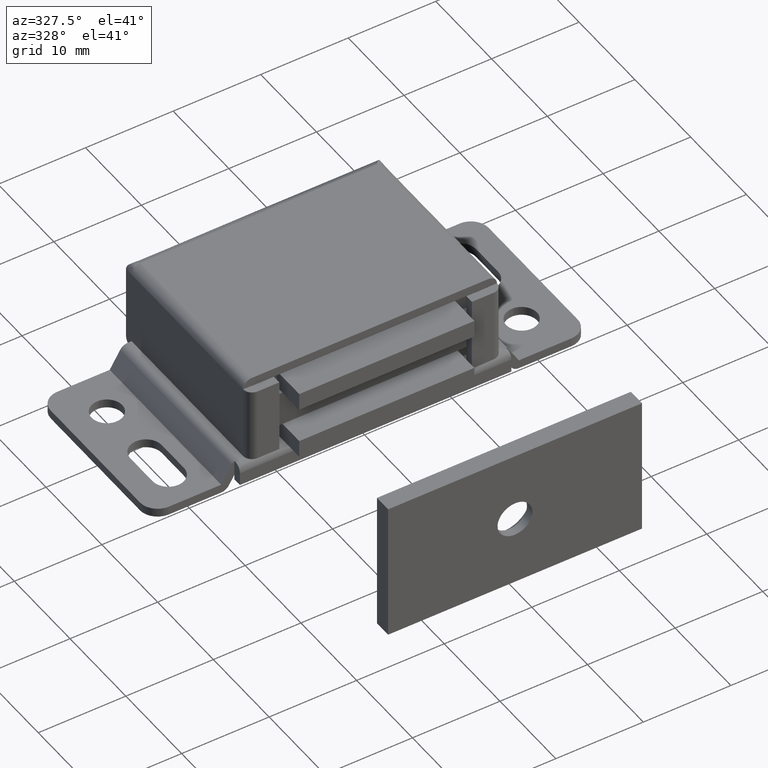
[diagram: clean part render]
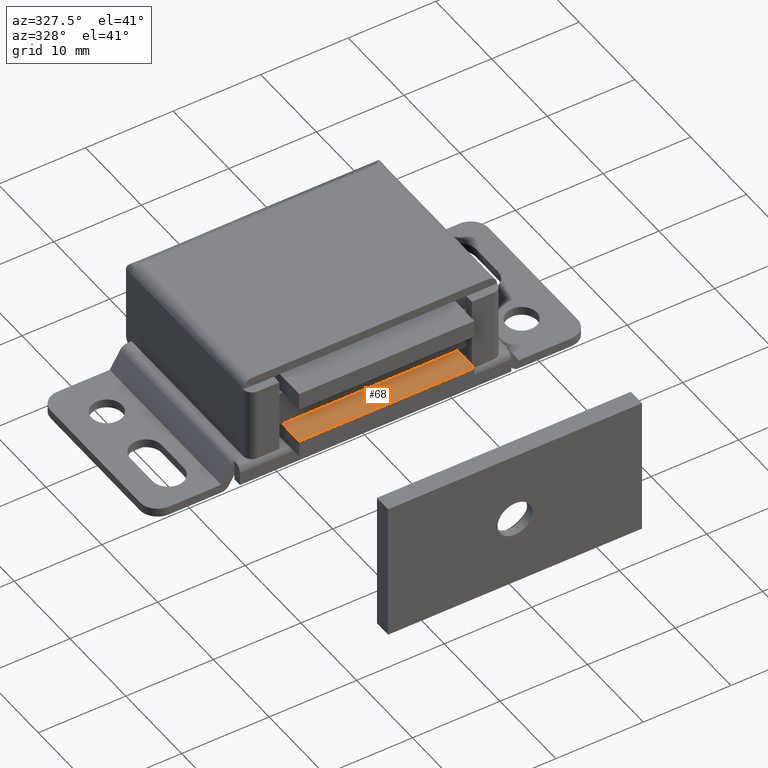
[diagram: same view with one face highlighted and labeled with its STEP entity id]
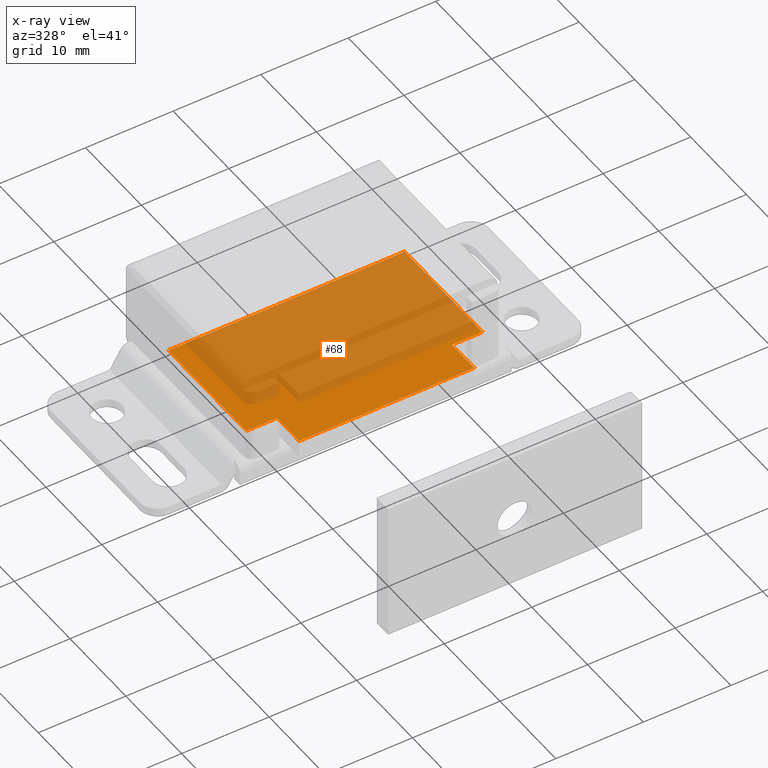
[diagram: x-ray of the same camera — body ghosted, the highlighted face saturated]
A machine part, auxiliary view. The second image highlights one B-rep face of the part: STEP entity #68.
The next image is the same camera in x-ray: the body ghosted, the highlighted face saturated — about 70% of this face is hidden behind the body in this view.
In plain terms, the highlighted face is a freeform B-spline surface patch.
Its self-contained STEP definition (entity closure, byte-faithful):
#5=CARTESIAN_POINT('',(-14.848649947668759,-5.100900034887492,5.499999999999801));
#6=CARTESIAN_POINT('',(14.848650671865190,-5.100900034887492,5.499999999999801));
#7=CARTESIAN_POINT('',(-14.848649947668759,-24.899100447910129,5.499999999999801));
#8=CARTESIAN_POINT('',(14.848650671865190,-24.899100447910129,5.499999999999801));
#9=B_SPLINE_SURFACE_WITH_KNOTS('',1,1,((#5,#7),(#6,#8)),.UNSPECIFIED.,.F.,.F.,.U.,(2,2),(2,2),(0.0,29.697300619533959),(0.0,19.798200413022641),.UNSPECIFIED.);
#10=CARTESIAN_POINT('',(10.0,-20.0,5.499999999999840));
#11=VERTEX_POINT('',#10);
#12=CARTESIAN_POINT('',(10.0,-24.0,5.499999999999840));
#13=VERTEX_POINT('',#12);
#14=CARTESIAN_POINT('',(10.0,-20.0,5.499999999999840));
#15=CARTESIAN_POINT('',(10.0,-24.0,5.499999999999840));
#16=QUASI_UNIFORM_CURVE('',1,(#14,#15),.UNSPECIFIED.,.F.,.U.);
#17=EDGE_CURVE('',#11,#13,#16,.T.);
#18=ORIENTED_EDGE('',*,*,#17,.F.);
#19=CARTESIAN_POINT('',(13.500000000000000,-20.0,5.499999999999840));
#20=VERTEX_POINT('',#19);
#21=CARTESIAN_POINT('',(13.500000000000000,-20.0,5.499999999999840));
#22=CARTESIAN_POINT('',(10.0,-20.0,5.499999999999840));
#23=QUASI_UNIFORM_CURVE('',1,(#21,#22),.UNSPECIFIED.,.F.,.U.);
#24=EDGE_CURVE('',#20,#11,#23,.T.);
#25=ORIENTED_EDGE('',*,*,#24,.F.);
#26=CARTESIAN_POINT('',(13.500000000000000,-6.0,5.499999999999840));
#27=VERTEX_POINT('',#26);
#28=CARTESIAN_POINT('',(13.500000000000000,-6.0,5.499999999999840));
#29=CARTESIAN_POINT('',(13.500000000000000,-20.0,5.499999999999840));
#30=QUASI_UNIFORM_CURVE('',1,(#28,#29),.UNSPECIFIED.,.F.,.U.);
#31=EDGE_CURVE('',#27,#20,#30,.T.);
#32=ORIENTED_EDGE('',*,*,#31,.F.);
#33=CARTESIAN_POINT('',(-13.500000000000000,-6.0,5.499999999999840));
#34=VERTEX_POINT('',#33);
#35=CARTESIAN_POINT('',(-13.500000000000000,-6.0,5.499999999999840));
#36=CARTESIAN_POINT('',(13.500000000000000,-6.0,5.499999999999840));
#37=QUASI_UNIFORM_CURVE('',1,(#35,#36),.UNSPECIFIED.,.F.,.U.);
#38=EDGE_CURVE('',#34,#27,#37,.T.);
#39=ORIENTED_EDGE('',*,*,#38,.F.);
#40=CARTESIAN_POINT('',(-13.500000000000000,-20.0,5.499999999999840));
#41=VERTEX_POINT('',#40);
#42=CARTESIAN_POINT('',(-13.500000000000000,-20.0,5.499999999999840));
#43=CARTESIAN_POINT('',(-13.500000000000000,-6.0,5.499999999999840));
#44=QUASI_UNIFORM_CURVE('',1,(#42,#43),.UNSPECIFIED.,.F.,.U.);
#45=EDGE_CURVE('',#41,#34,#44,.T.);
#46=ORIENTED_EDGE('',*,*,#45,.F.);
#47=CARTESIAN_POINT('',(-10.0,-20.0,5.499999999999840));
#48=VERTEX_POINT('',#47);
#49=CARTESIAN_POINT('',(-10.0,-20.0,5.499999999999840));
#50=CARTESIAN_POINT('',(-13.500000000000000,-20.0,5.499999999999840));
#51=QUASI_UNIFORM_CURVE('',1,(#49,#50),.UNSPECIFIED.,.F.,.U.);
#52=EDGE_CURVE('',#48,#41,#51,.T.);
#53=ORIENTED_EDGE('',*,*,#52,.F.);
#54=CARTESIAN_POINT('',(-10.0,-24.0,5.499999999999840));
#55=VERTEX_POINT('',#54);
#56=CARTESIAN_POINT('',(-10.0,-24.0,5.499999999999840));
#57=CARTESIAN_POINT('',(-10.0,-20.0,5.499999999999840));
#58=QUASI_UNIFORM_CURVE('',1,(#56,#57),.UNSPECIFIED.,.F.,.U.);
#59=EDGE_CURVE('',#55,#48,#58,.T.);
#60=ORIENTED_EDGE('',*,*,#59,.F.);
#61=CARTESIAN_POINT('',(10.0,-24.0,5.499999999999840));
#62=CARTESIAN_POINT('',(-10.0,-24.0,5.499999999999840));
#63=QUASI_UNIFORM_CURVE('',1,(#61,#62),.UNSPECIFIED.,.F.,.U.);
#64=EDGE_CURVE('',#13,#55,#63,.T.);
#65=ORIENTED_EDGE('',*,*,#64,.F.);
#66=EDGE_LOOP('',(#18,#25,#32,#39,#46,#53,#60,#65));
#67=FACE_OUTER_BOUND('',#66,.T.);
#68=ADVANCED_FACE('',(#67),#9,.F.);